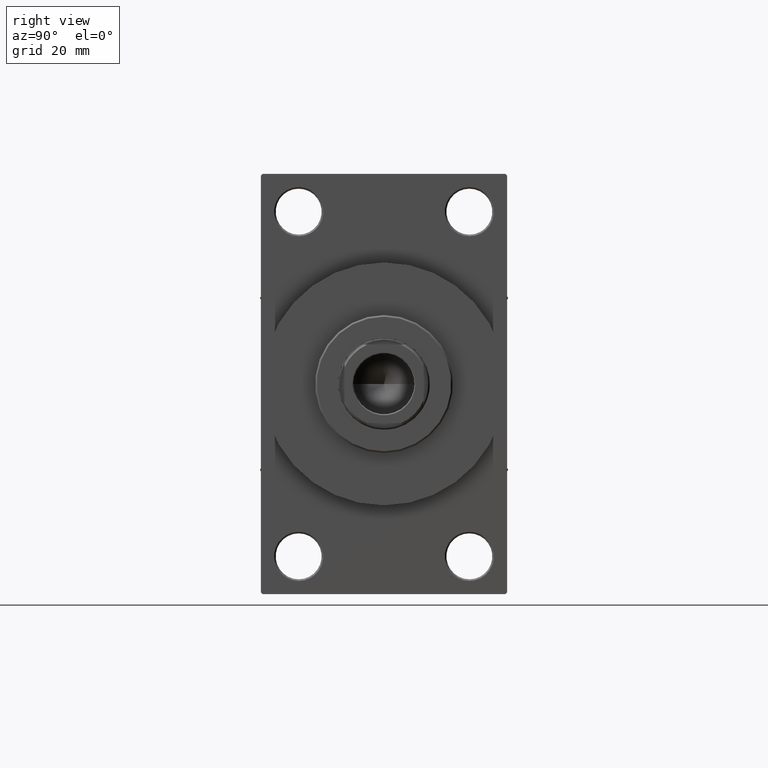
[diagram: clean part render]
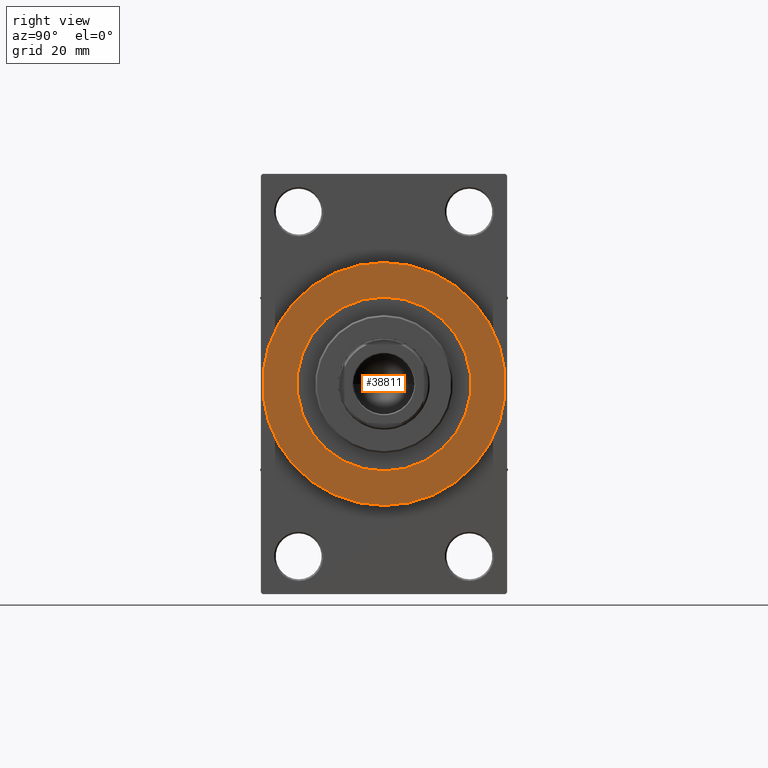
[diagram: same view with one face highlighted and labeled with its STEP entity id]
A machine part, right view. The second image highlights one B-rep face of the part: STEP entity #38811.
In plain terms, the highlighted planar face has unit normal (1, 0, 0).
Its self-contained STEP definition (entity closure, byte-faithful):
#1107 = DIRECTION ( 'NONE',  ( 0.000000000000000000, 0.000000000000000000, -1.000000000000000000 ) ) ;
#1845 = VERTEX_POINT ( 'NONE', #25774 ) ;
#3449 = AXIS2_PLACEMENT_3D ( 'NONE', #41920, #13037, #13755 ) ;
#3675 = CARTESIAN_POINT ( 'NONE',  ( 138.9999999999999716, 3.245314017740486554E-15, 26.50000000000000355 ) ) ;
#8042 = AXIS2_PLACEMENT_3D ( 'NONE', #8850, #41075, #12898 ) ;
#8850 = CARTESIAN_POINT ( 'NONE',  ( 138.9999999999999716, 0.000000000000000000, 0.000000000000000000 ) ) ;
#9899 = ORIENTED_EDGE ( 'NONE', *, *, #34335, .F. ) ;
#10443 = ORIENTED_EDGE ( 'NONE', *, *, #41099, .T. ) ;
#12115 = DIRECTION ( 'NONE',  ( 0.000000000000000000, 0.000000000000000000, -1.000000000000000000 ) ) ;
#12898 = DIRECTION ( 'NONE',  ( 0.000000000000000000, 0.000000000000000000, -1.000000000000000000 ) ) ;
#13037 = DIRECTION ( 'NONE',  ( 1.000000000000000000, 0.000000000000000000, 0.000000000000000000 ) ) ;
#13241 = ORIENTED_EDGE ( 'NONE', *, *, #39278, .T. ) ;
#13755 = DIRECTION ( 'NONE',  ( 0.000000000000000000, 0.000000000000000000, -1.000000000000000000 ) ) ;
#13781 = CARTESIAN_POINT ( 'NONE',  ( 138.9999999999999716, 0.000000000000000000, 37.00000000000000000 ) ) ;
#14961 = CIRCLE ( 'NONE', #29436, 37.00000000000000000 ) ;
#16072 = FACE_BOUND ( 'NONE', #17791, .T. ) ;
#17791 = EDGE_LOOP ( 'NONE', ( #9899, #29824 ) ) ;
#17911 = CIRCLE ( 'NONE', #3449, 37.00000000000000000 ) ;
#18950 = PLANE ( 'NONE',  #21730 ) ;
#19110 = VERTEX_POINT ( 'NONE', #13781 ) ;
#20658 = VERTEX_POINT ( 'NONE', #29350 ) ;
#21730 = AXIS2_PLACEMENT_3D ( 'NONE', #23001, #34457, #30866 ) ;
#23001 = CARTESIAN_POINT ( 'NONE',  ( 138.9999999999999716, 0.000000000000000000, 0.000000000000000000 ) ) ;
#25774 = CARTESIAN_POINT ( 'NONE',  ( 138.9999999999999716, 4.531193156845206793E-15, -37.00000000000000000 ) ) ;
#29350 = CARTESIAN_POINT ( 'NONE',  ( 138.9999999999999716, 0.000000000000000000, -26.50000000000000355 ) ) ;
#29436 = AXIS2_PLACEMENT_3D ( 'NONE', #44352, #29777, #12115 ) ;
#29777 = DIRECTION ( 'NONE',  ( 1.000000000000000000, 0.000000000000000000, 0.000000000000000000 ) ) ;
#29824 = ORIENTED_EDGE ( 'NONE', *, *, #43260, .F. ) ;
#30145 = CIRCLE ( 'NONE', #8042, 26.50000000000000355 ) ;
#30866 = DIRECTION ( 'NONE',  ( 0.000000000000000000, 0.000000000000000000, -1.000000000000000000 ) ) ;
#32590 = VERTEX_POINT ( 'NONE', #3675 ) ;
#33816 = CARTESIAN_POINT ( 'NONE',  ( 138.9999999999999716, 0.000000000000000000, 0.000000000000000000 ) ) ;
#34335 = EDGE_CURVE ( 'NONE', #20658, #32590, #34555, .T. ) ;
#34457 = DIRECTION ( 'NONE',  ( 1.000000000000000000, 0.000000000000000000, 0.000000000000000000 ) ) ;
#34555 = CIRCLE ( 'NONE', #46012, 26.50000000000000355 ) ;
#36934 = DIRECTION ( 'NONE',  ( 1.000000000000000000, 0.000000000000000000, 0.000000000000000000 ) ) ;
#37242 = EDGE_LOOP ( 'NONE', ( #10443, #13241 ) ) ;
#38811 = ADVANCED_FACE ( 'NONE', ( #16072, #41383 ), #18950, .T. ) ;
#39278 = EDGE_CURVE ( 'NONE', #1845, #19110, #17911, .T. ) ;
#41075 = DIRECTION ( 'NONE',  ( 1.000000000000000000, 0.000000000000000000, 0.000000000000000000 ) ) ;
#41099 = EDGE_CURVE ( 'NONE', #19110, #1845, #14961, .T. ) ;
#41383 = FACE_OUTER_BOUND ( 'NONE', #37242, .T. ) ;
#41920 = CARTESIAN_POINT ( 'NONE',  ( 138.9999999999999716, 0.000000000000000000, 0.000000000000000000 ) ) ;
#43260 = EDGE_CURVE ( 'NONE', #32590, #20658, #30145, .T. ) ;
#44352 = CARTESIAN_POINT ( 'NONE',  ( 138.9999999999999716, 0.000000000000000000, 0.000000000000000000 ) ) ;
#46012 = AXIS2_PLACEMENT_3D ( 'NONE', #33816, #36934, #1107 ) ;